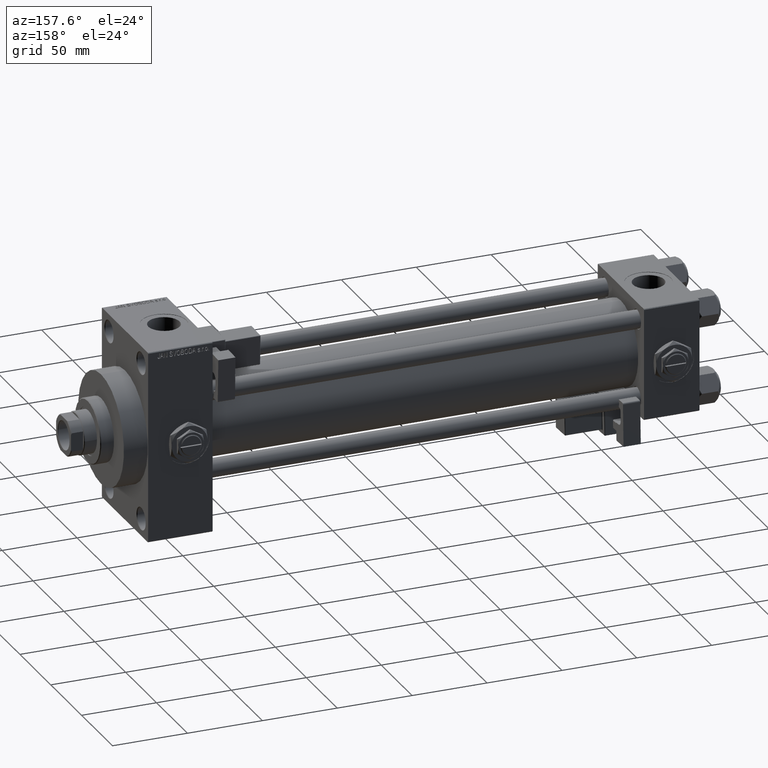
[diagram: clean part render]
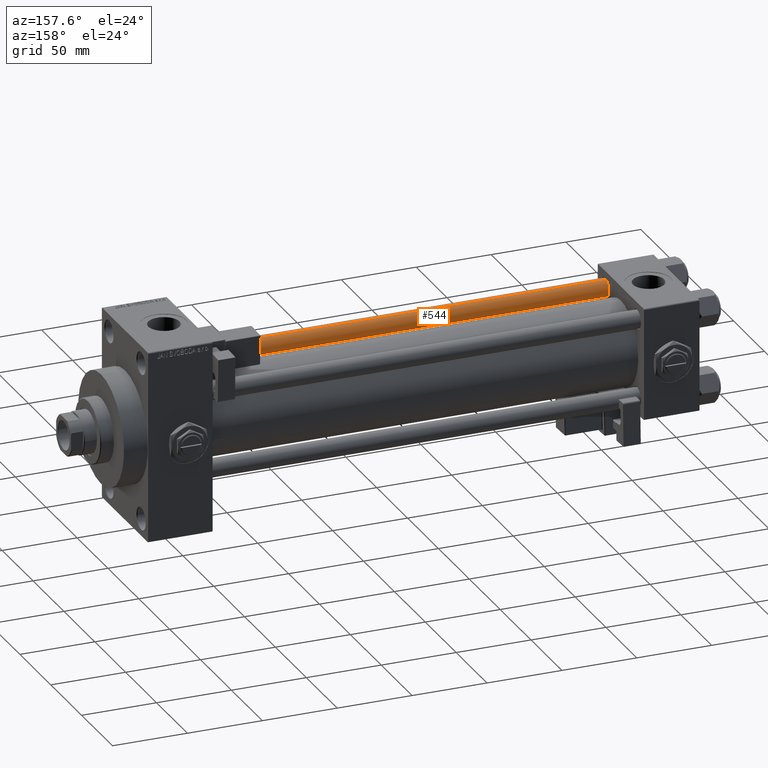
[diagram: same view with one face highlighted and labeled with its STEP entity id]
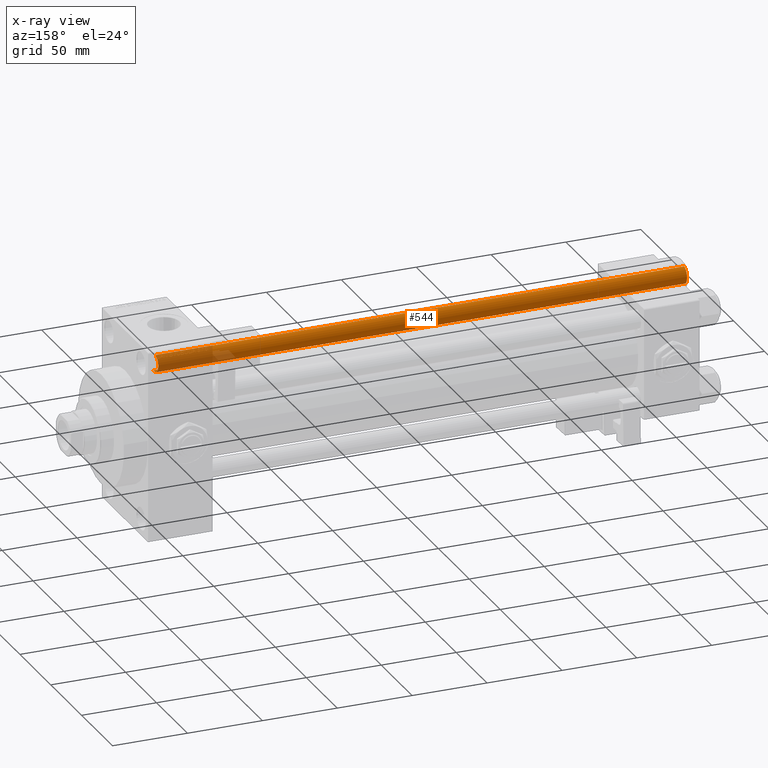
[diagram: x-ray of the same camera — body ghosted, the highlighted face saturated]
A machine part, auxiliary view. The second image highlights one B-rep face of the part: STEP entity #544.
The next image is the same camera in x-ray: the body ghosted, the highlighted face saturated — about 13% of this face is hidden behind the body in this view.
In plain terms, the highlighted cylindrical surface (edge-blend (fillet) strip) has radius 6 mm, axis along (1, 0, 0).
Its self-contained STEP definition (entity closure, byte-faithful):
#544 = ADVANCED_FACE ( 'NONE', ( #2060 ), #14052, .T. ) ;
#2060 = FACE_OUTER_BOUND ( 'NONE', #10276, .T. ) ;
#2259 = VECTOR ( 'NONE', #4396, 1000.000000000000000 ) ;
#3211 = CARTESIAN_POINT ( 'NONE',  ( 0.000000000000000000, 0.000000000000000000, 353.5000000000000000 ) ) ;
#4396 = DIRECTION ( 'NONE',  ( -0.000000000000000000, -0.000000000000000000, -1.000000000000000000 ) ) ;
#7953 = VERTEX_POINT ( 'NONE', #38471 ) ;
#8413 = EDGE_CURVE ( 'NONE', #7953, #38264, #31052, .T. ) ;
#10141 = DIRECTION ( 'NONE',  ( -0.000000000000000000, -0.000000000000000000, -1.000000000000000000 ) ) ;
#10276 = EDGE_LOOP ( 'NONE', ( #23137, #30792, #18285, #50656 ) ) ;
#10818 = VECTOR ( 'NONE', #26709, 1000.000000000000000 ) ;
#13331 = DIRECTION ( 'NONE',  ( -0.000000000000000000, -0.000000000000000000, 1.000000000000000000 ) ) ;
#13988 = DIRECTION ( 'NONE',  ( 1.000000000000000000, 0.000000000000000000, 0.000000000000000000 ) ) ;
#14052 = CYLINDRICAL_SURFACE ( 'NONE', #50166, 6.000000000000000888 ) ;
#18235 = CIRCLE ( 'NONE', #24862, 6.000000000000000888 ) ;
#18285 = ORIENTED_EDGE ( 'NONE', *, *, #42419, .T. ) ;
#19563 = CIRCLE ( 'NONE', #48645, 6.000000000000000888 ) ;
#23019 = VERTEX_POINT ( 'NONE', #41535 ) ;
#23137 = ORIENTED_EDGE ( 'NONE', *, *, #8413, .F. ) ;
#24862 = AXIS2_PLACEMENT_3D ( 'NONE', #48213, #13331, #25566 ) ;
#25444 = DIRECTION ( 'NONE',  ( 0.000000000000000000, 0.000000000000000000, -1.000000000000000000 ) ) ;
#25566 = DIRECTION ( 'NONE',  ( 1.000000000000000000, 0.000000000000000000, 0.000000000000000000 ) ) ;
#26709 = DIRECTION ( 'NONE',  ( -0.000000000000000000, -0.000000000000000000, -1.000000000000000000 ) ) ;
#28867 = EDGE_CURVE ( 'NONE', #7953, #45852, #19563, .T. ) ;
#29932 = CARTESIAN_POINT ( 'NONE',  ( 0.000000000000000000, 0.000000000000000000, 354.0000000000000000 ) ) ;
#30355 = CARTESIAN_POINT ( 'NONE',  ( -6.000000000000000888, 0.000000000000000000, 354.0000000000000000 ) ) ;
#30792 = ORIENTED_EDGE ( 'NONE', *, *, #28867, .T. ) ;
#31052 = LINE ( 'NONE', #34706, #2259 ) ;
#34706 = CARTESIAN_POINT ( 'NONE',  ( 6.000000000000000888, 7.347880794884120722E-16, 354.0000000000000000 ) ) ;
#36139 = EDGE_CURVE ( 'NONE', #23019, #38264, #18235, .T. ) ;
#38264 = VERTEX_POINT ( 'NONE', #47307 ) ;
#38471 = CARTESIAN_POINT ( 'NONE',  ( 6.000000000000000888, 7.347880794884120722E-16, 353.5000000000000000 ) ) ;
#41535 = CARTESIAN_POINT ( 'NONE',  ( -6.000000000000000888, 0.000000000000000000, 0.5000000000000559552 ) ) ;
#41896 = DIRECTION ( 'NONE',  ( -1.000000000000000000, 0.000000000000000000, 0.000000000000000000 ) ) ;
#42419 = EDGE_CURVE ( 'NONE', #45852, #23019, #49624, .T. ) ;
#45852 = VERTEX_POINT ( 'NONE', #48665 ) ;
#47307 = CARTESIAN_POINT ( 'NONE',  ( 6.000000000000000888, 7.347880794884120722E-16, 0.5000000000000559552 ) ) ;
#48213 = CARTESIAN_POINT ( 'NONE',  ( 0.000000000000000000, 0.000000000000000000, 0.5000000000000559552 ) ) ;
#48645 = AXIS2_PLACEMENT_3D ( 'NONE', #3211, #25444, #13988 ) ;
#48665 = CARTESIAN_POINT ( 'NONE',  ( -6.000000000000000888, 0.000000000000000000, 353.5000000000000000 ) ) ;
#49624 = LINE ( 'NONE', #30355, #10818 ) ;
#50166 = AXIS2_PLACEMENT_3D ( 'NONE', #29932, #10141, #41896 ) ;
#50656 = ORIENTED_EDGE ( 'NONE', *, *, #36139, .T. ) ;